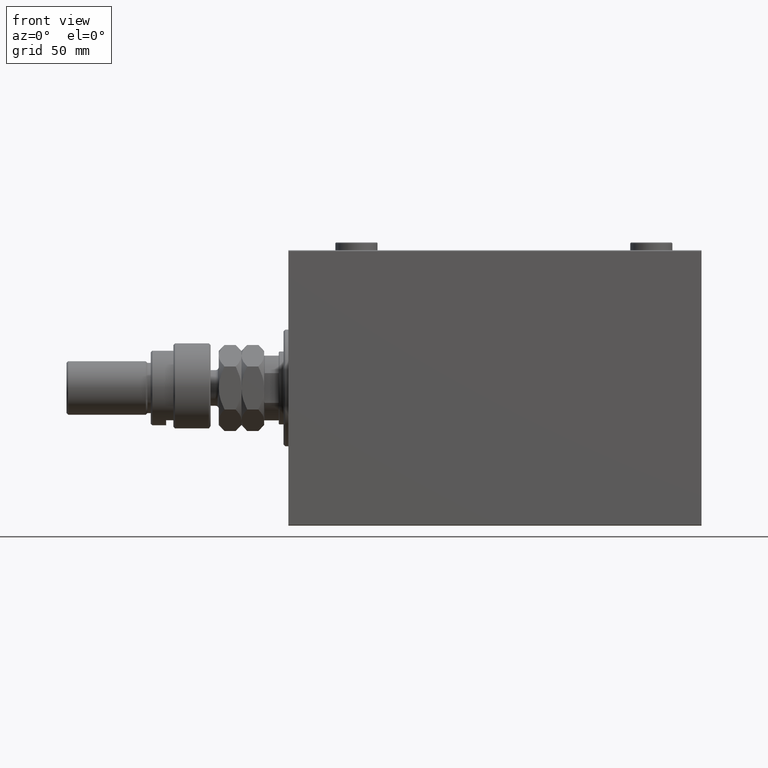
[diagram: clean part render]
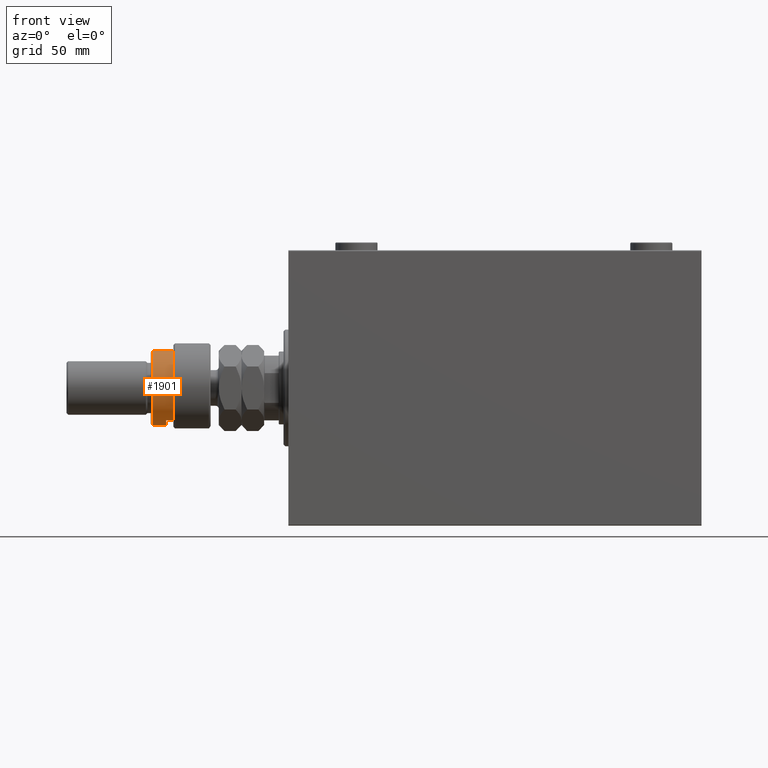
[diagram: same view with one face highlighted and labeled with its STEP entity id]
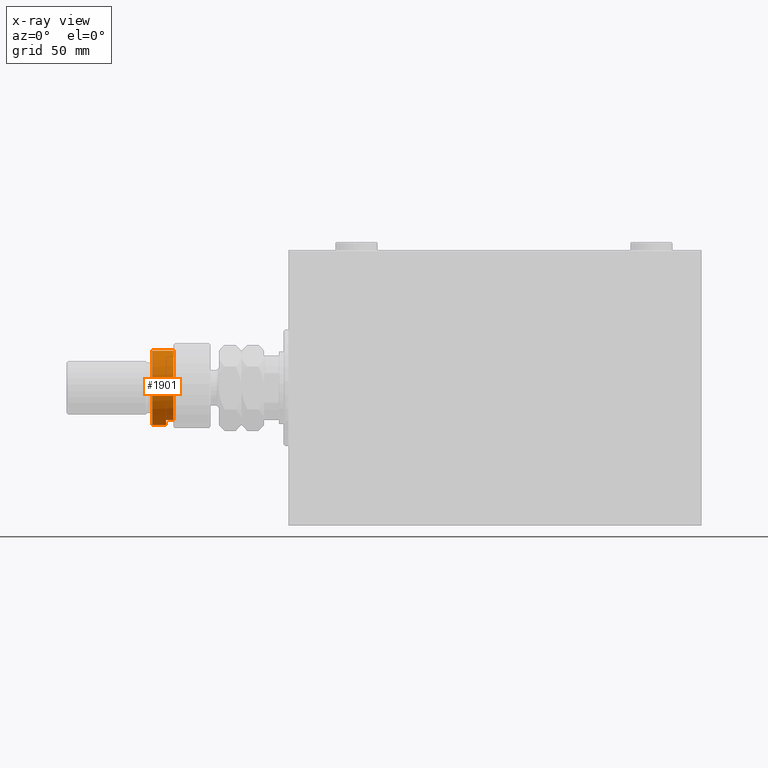
[diagram: x-ray of the same camera — body ghosted, the highlighted face saturated]
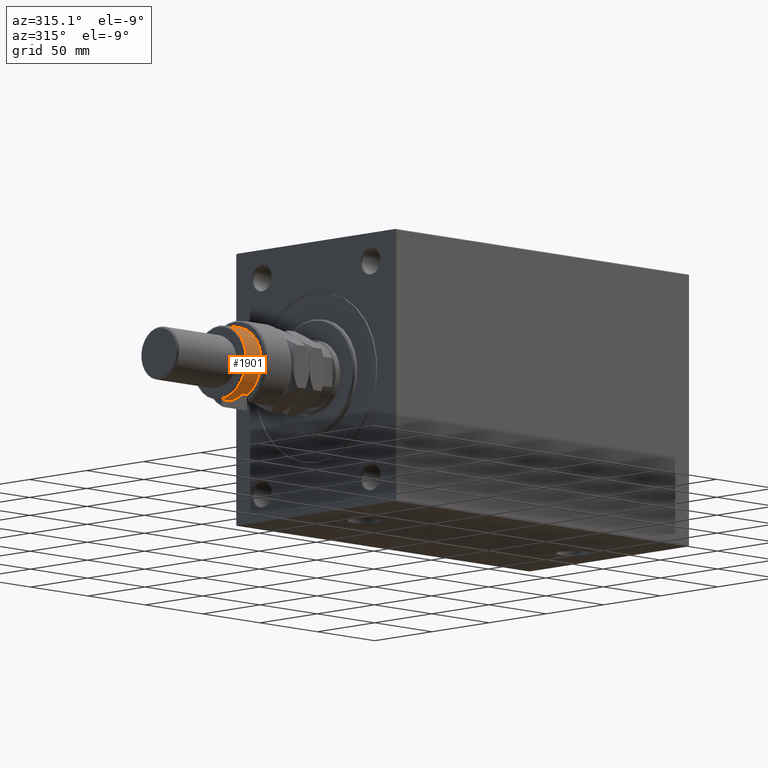
[diagram: same view with one face highlighted and labeled with its STEP entity id]
A machine part, front view. The second image highlights one B-rep face of the part: STEP entity #1901.
The next image is the same camera in x-ray: the body ghosted, the highlighted face saturated — about 0% of this face is hidden behind the body in this view.
A second angle (auxiliary view) of the same face is appended — the face is thin or edge-on in the first view.
In plain terms, the highlighted cylindrical surface (partial cylindrical patch) has radius 23 mm, axis along (1, -0, -0).
Its self-contained STEP definition (entity closure, byte-faithful):
#361 = CARTESIAN_POINT ( 'NONE',  ( 0.000000000000000000, 0.000000000000000000, 27.50000000000000000 ) ) ;
#367 = CARTESIAN_POINT ( 'NONE',  ( -23.00000000000000000, 0.000000000000000000, 27.50000000000000000 ) ) ;
#1258 = ORIENTED_EDGE ( 'NONE', *, *, #40938, .F. ) ;
#1901 = ADVANCED_FACE ( 'NONE', ( #27788 ), #31970, .T. ) ;
#2358 = CARTESIAN_POINT ( 'NONE',  ( 23.00000000000000000, 2.816687638038912352E-15, 23.00000000000000000 ) ) ;
#3222 = CARTESIAN_POINT ( 'NONE',  ( -23.00000000000000000, 0.000000000000000000, 36.00000000000002842 ) ) ;
#4405 = EDGE_CURVE ( 'NONE', #27175, #23560, #19047, .T. ) ;
#6035 = ORIENTED_EDGE ( 'NONE', *, *, #19695, .T. ) ;
#6813 = CARTESIAN_POINT ( 'NONE',  ( 23.00000000000000000, 2.816687638038912352E-15, 37.00000000000000000 ) ) ;
#7038 = CARTESIAN_POINT ( 'NONE',  ( -19.91858428704208706, -11.50000000000000000, 23.00000000000000000 ) ) ;
#7424 = VERTEX_POINT ( 'NONE', #41715 ) ;
#8022 = DIRECTION ( 'NONE',  ( -0.000000000000000000, -0.000000000000000000, -1.000000000000000000 ) ) ;
#8396 = DIRECTION ( 'NONE',  ( -0.000000000000000000, -0.000000000000000000, -1.000000000000000000 ) ) ;
#11373 = VERTEX_POINT ( 'NONE', #367 ) ;
#11665 = CARTESIAN_POINT ( 'NONE',  ( -23.00000000000000000, 0.000000000000000000, 37.00000000000000000 ) ) ;
#12393 = EDGE_LOOP ( 'NONE', ( #1258, #43369, #17355, #31776, #20260, #6035 ) ) ;
#14143 = DIRECTION ( 'NONE',  ( 1.000000000000000000, 0.000000000000000000, 0.000000000000000000 ) ) ;
#14221 = AXIS2_PLACEMENT_3D ( 'NONE', #361, #26150, #41389 ) ;
#14473 = VERTEX_POINT ( 'NONE', #7038 ) ;
#14671 = VECTOR ( 'NONE', #8022, 1000.000000000000000 ) ;
#14843 = CARTESIAN_POINT ( 'NONE',  ( 0.000000000000000000, 0.000000000000000000, 36.00000000000002842 ) ) ;
#17355 = ORIENTED_EDGE ( 'NONE', *, *, #35705, .T. ) ;
#18332 = LINE ( 'NONE', #6813, #45512 ) ;
#19047 = CIRCLE ( 'NONE', #25317, 23.00000000000000000 ) ;
#19695 = EDGE_CURVE ( 'NONE', #14473, #27929, #42722, .T. ) ;
#20260 = ORIENTED_EDGE ( 'NONE', *, *, #31323, .T. ) ;
#23379 = DIRECTION ( 'NONE',  ( -1.000000000000000000, 0.000000000000000000, 0.000000000000000000 ) ) ;
#23560 = VERTEX_POINT ( 'NONE', #3222 ) ;
#23623 = CIRCLE ( 'NONE', #14221, 23.00000000000000000 ) ;
#25317 = AXIS2_PLACEMENT_3D ( 'NONE', #14843, #30555, #45566 ) ;
#26150 = DIRECTION ( 'NONE',  ( 0.000000000000000000, 0.000000000000000000, -1.000000000000000000 ) ) ;
#27175 = VERTEX_POINT ( 'NONE', #27315 ) ;
#27315 = CARTESIAN_POINT ( 'NONE',  ( 23.00000000000000000, 2.816687638038912352E-15, 36.00000000000002842 ) ) ;
#27788 = FACE_OUTER_BOUND ( 'NONE', #12393, .T. ) ;
#27929 = VERTEX_POINT ( 'NONE', #2358 ) ;
#28899 = DIRECTION ( 'NONE',  ( 0.000000000000000000, 0.000000000000000000, 1.000000000000000000 ) ) ;
#29158 = DIRECTION ( 'NONE',  ( -0.000000000000000000, -0.000000000000000000, -1.000000000000000000 ) ) ;
#30555 = DIRECTION ( 'NONE',  ( 0.000000000000000000, 0.000000000000000000, -1.000000000000000000 ) ) ;
#31099 = LINE ( 'NONE', #47266, #14671 ) ;
#31323 = EDGE_CURVE ( 'NONE', #7424, #14473, #31099, .T. ) ;
#31776 = ORIENTED_EDGE ( 'NONE', *, *, #48216, .F. ) ;
#31970 = CYLINDRICAL_SURFACE ( 'NONE', #39365, 23.00000000000000000 ) ;
#35705 = EDGE_CURVE ( 'NONE', #23560, #11373, #45354, .T. ) ;
#39204 = VECTOR ( 'NONE', #41897, 1000.000000000000000 ) ;
#39365 = AXIS2_PLACEMENT_3D ( 'NONE', #46982, #8396, #23379 ) ;
#40938 = EDGE_CURVE ( 'NONE', #27175, #27929, #18332, .T. ) ;
#41389 = DIRECTION ( 'NONE',  ( -1.000000000000000000, 0.000000000000000000, 0.000000000000000000 ) ) ;
#41715 = CARTESIAN_POINT ( 'NONE',  ( -19.91858428704208350, -11.49999999999999645, 27.50000000000000000 ) ) ;
#41897 = DIRECTION ( 'NONE',  ( -0.000000000000000000, -0.000000000000000000, -1.000000000000000000 ) ) ;
#42722 = CIRCLE ( 'NONE', #43503, 23.00000000000000000 ) ;
#43369 = ORIENTED_EDGE ( 'NONE', *, *, #4405, .T. ) ;
#43503 = AXIS2_PLACEMENT_3D ( 'NONE', #47605, #28899, #14143 ) ;
#45354 = LINE ( 'NONE', #11665, #39204 ) ;
#45512 = VECTOR ( 'NONE', #29158, 1000.000000000000000 ) ;
#45566 = DIRECTION ( 'NONE',  ( 1.000000000000000000, 0.000000000000000000, 0.000000000000000000 ) ) ;
#46982 = CARTESIAN_POINT ( 'NONE',  ( 0.000000000000000000, 0.000000000000000000, 37.00000000000000000 ) ) ;
#47266 = CARTESIAN_POINT ( 'NONE',  ( -19.91858428704208706, -11.50000000000000000, 37.00000000000000000 ) ) ;
#47605 = CARTESIAN_POINT ( 'NONE',  ( 0.000000000000000000, 0.000000000000000000, 23.00000000000000000 ) ) ;
#48216 = EDGE_CURVE ( 'NONE', #7424, #11373, #23623, .T. ) ;